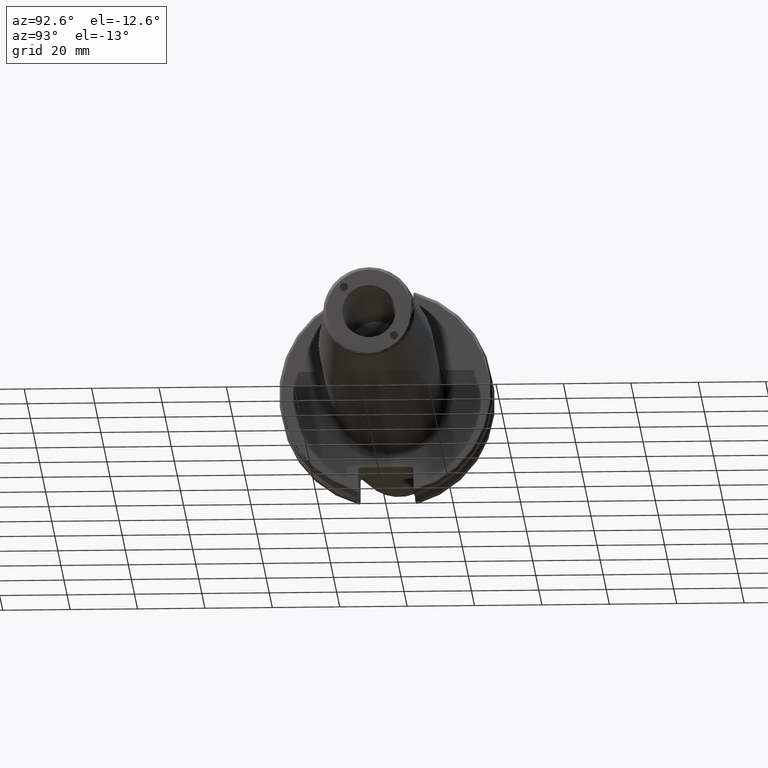
[diagram: clean part render]
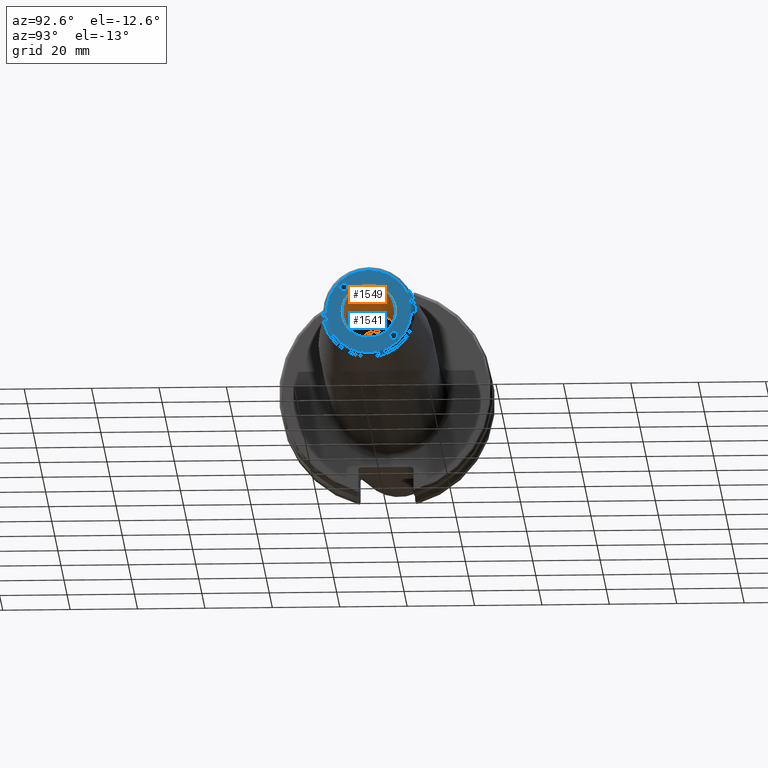
[diagram: same view with the hole feature highlighted: cylindrical wall and planar end face, labeled with their STEP entity ids]
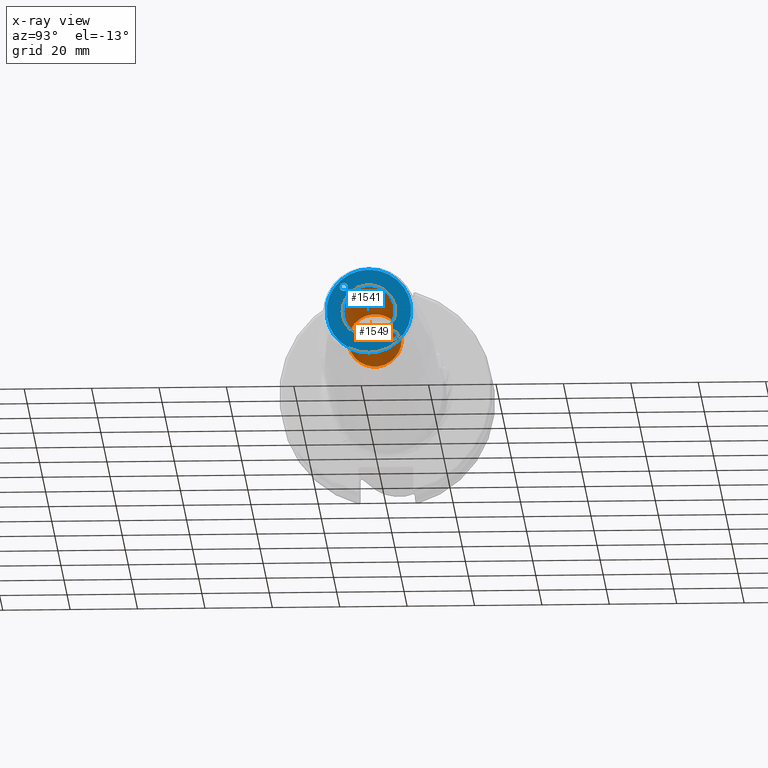
[diagram: x-ray of the same camera — body ghosted, the hole faces saturated]
A machine part, auxiliary view. The highlighted faces form one hole feature of diameter 15.875 mm: the cylindrical wall (entity #1549, orange) and its adjacent planar end face (entity #1541, blue) — they share a circular edge in the B-rep.
The next image is the same camera in x-ray (body ghosted, the hole faces saturated) — the bore reads through the body.
Wall:
#149=CYLINDRICAL_SURFACE('',#1684,7.9375);
#188=FACE_OUTER_BOUND('',#285,.T.);
#285=EDGE_LOOP('',(#1112,#1113,#1114,#1115));
#394=LINE('',#2471,#492);
#492=VECTOR('',#1927,7.9375);
#577=CIRCLE('',#1664,7.9375);
#590=CIRCLE('',#1685,7.9375);
#655=VERTEX_POINT('',#2336);
#681=VERTEX_POINT('',#2470);
#816=EDGE_CURVE('',#655,#655,#577,.T.);
#848=EDGE_CURVE('',#655,#681,#394,.T.);
#849=EDGE_CURVE('',#681,#681,#590,.T.);
#1112=ORIENTED_EDGE('',*,*,#816,.T.);
#1113=ORIENTED_EDGE('',*,*,#848,.T.);
#1114=ORIENTED_EDGE('',*,*,#849,.F.);
#1115=ORIENTED_EDGE('',*,*,#848,.F.);
#1549=ADVANCED_FACE('',(#188),#149,.F.);
#1664=AXIS2_PLACEMENT_3D('',#2337,#1870,#1871);
#1684=AXIS2_PLACEMENT_3D('',#2469,#1925,#1926);
#1685=AXIS2_PLACEMENT_3D('',#2472,#1928,#1929);
#1870=DIRECTION('center_axis',(1.,0.,0.));
#1871=DIRECTION('ref_axis',(0.,0.,-1.));
#1925=DIRECTION('center_axis',(1.,0.,0.));
#1926=DIRECTION('ref_axis',(0.,1.,0.));
#1927=DIRECTION('',(-1.,0.,0.));
#1928=DIRECTION('center_axis',(1.,0.,0.));
#1929=DIRECTION('ref_axis',(0.,0.,-1.));
#2336=CARTESIAN_POINT('',(130.,-7.9375,-9.72063396823211E-16));
#2337=CARTESIAN_POINT('Origin',(130.,0.,0.));
#2469=CARTESIAN_POINT('Origin',(110.,0.,0.));
#2470=CARTESIAN_POINT('',(90.,-7.9375,-9.72063396823211E-16));
#2471=CARTESIAN_POINT('',(110.,-7.9375,-9.72063396823211E-16));
#2472=CARTESIAN_POINT('Origin',(90.,0.,0.));
End face:
#61=FACE_BOUND('',#272,.T.);
#62=FACE_BOUND('',#273,.T.);
#63=FACE_BOUND('',#274,.T.);
#79=PLANE('',#1663);
#124=ELLIPSE('',#1653,1.2302494347154,1.2295);
#125=ELLIPSE('',#1657,1.2302494347154,1.2295);
#180=FACE_OUTER_BOUND('',#271,.T.);
#271=EDGE_LOOP('',(#1062));
#272=EDGE_LOOP('',(#1063));
#273=EDGE_LOOP('',(#1064));
#274=EDGE_LOOP('',(#1065));
#573=CIRCLE('',#1659,12.5756095083418);
#577=CIRCLE('',#1664,7.9375);
#648=VERTEX_POINT('',#2315);
#651=VERTEX_POINT('',#2324);
#652=VERTEX_POINT('',#2328);
#655=VERTEX_POINT('',#2336);
#806=EDGE_CURVE('',#648,#648,#124,.T.);
#810=EDGE_CURVE('',#651,#651,#125,.T.);
#812=EDGE_CURVE('',#652,#652,#573,.T.);
#816=EDGE_CURVE('',#655,#655,#577,.T.);
#1062=ORIENTED_EDGE('',*,*,#812,.F.);
#1063=ORIENTED_EDGE('',*,*,#806,.T.);
#1064=ORIENTED_EDGE('',*,*,#810,.T.);
#1065=ORIENTED_EDGE('',*,*,#816,.F.);
#1541=ADVANCED_FACE('',(#180,#61,#62,#63),#79,.T.);
#1653=AXIS2_PLACEMENT_3D('',#2316,#1845,#1846);
#1657=AXIS2_PLACEMENT_3D('',#2325,#1855,#1856);
#1659=AXIS2_PLACEMENT_3D('',#2329,#1860,#1861);
#1663=AXIS2_PLACEMENT_3D('',#2335,#1868,#1869);
#1664=AXIS2_PLACEMENT_3D('',#2337,#1870,#1871);
#1845=DIRECTION('center_axis',(-1.,0.,0.));
#1846=DIRECTION('ref_axis',(0.,-0.707106781186452,0.707106781186643));
#1855=DIRECTION('center_axis',(-1.,0.,0.));
#1856=DIRECTION('ref_axis',(0.,0.707106781186452,-0.707106781186643));
#1860=DIRECTION('center_axis',(-1.,0.,0.));
#1861=DIRECTION('ref_axis',(0.,-1.,1.83697019872103E-16));
#1868=DIRECTION('center_axis',(1.,0.,0.));
#1869=DIRECTION('ref_axis',(0.,0.,-1.));
#1870=DIRECTION('center_axis',(1.,0.,0.));
#1871=DIRECTION('ref_axis',(0.,0.,-1.));
#2315=CARTESIAN_POINT('',(130.,-6.19474642801674,7.42387176777813));
#2316=CARTESIAN_POINT('Origin',(130.,-7.42462120245875,7.42462120245875));
#2324=CARTESIAN_POINT('',(130.,6.19474642801674,-7.42387176777813));
#2325=CARTESIAN_POINT('Origin',(130.,7.42462120245875,-7.42462120245875));
#2328=CARTESIAN_POINT('',(130.,-1.54006799317178E-15,12.5756095083418));
#2329=CARTESIAN_POINT('Origin',(130.,0.,0.));
#2335=CARTESIAN_POINT('Origin',(130.,7.9375,0.));
#2336=CARTESIAN_POINT('',(130.,-7.9375,-9.72063396823211E-16));
#2337=CARTESIAN_POINT('Origin',(130.,0.,0.));